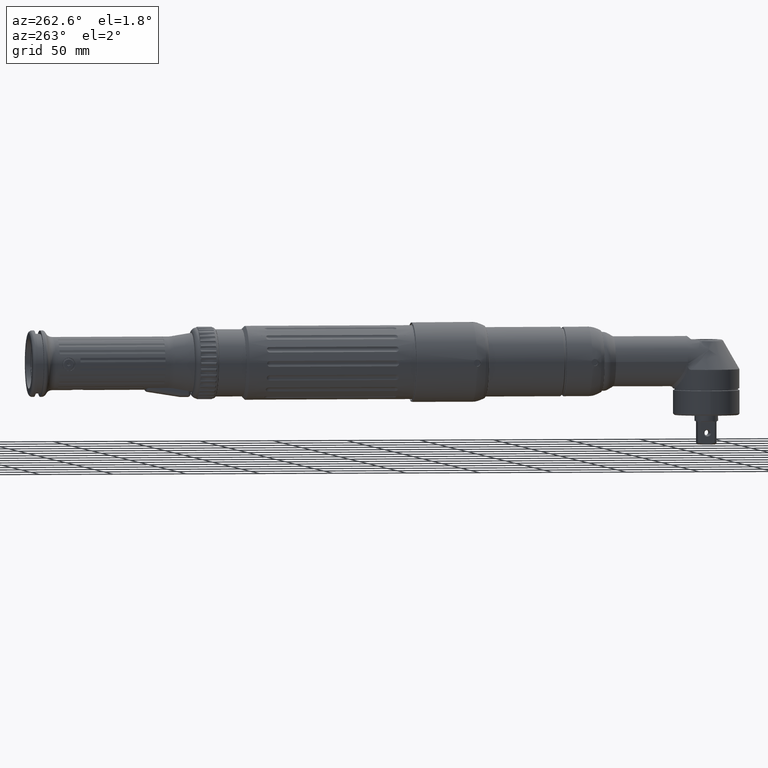
[diagram: clean part render]
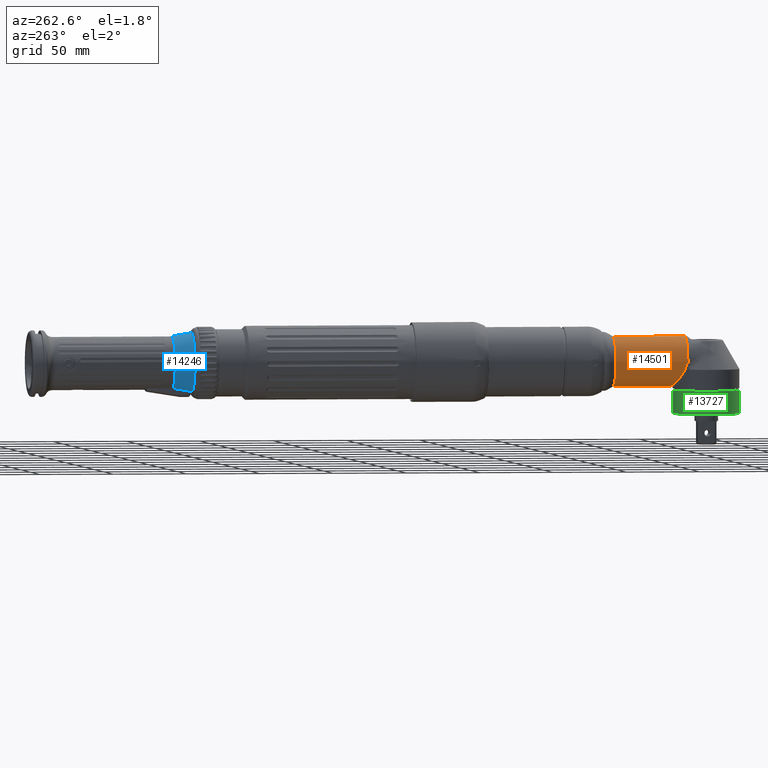
[diagram: same view with three faces highlighted in distinct colors, each labeled with its STEP entity id]
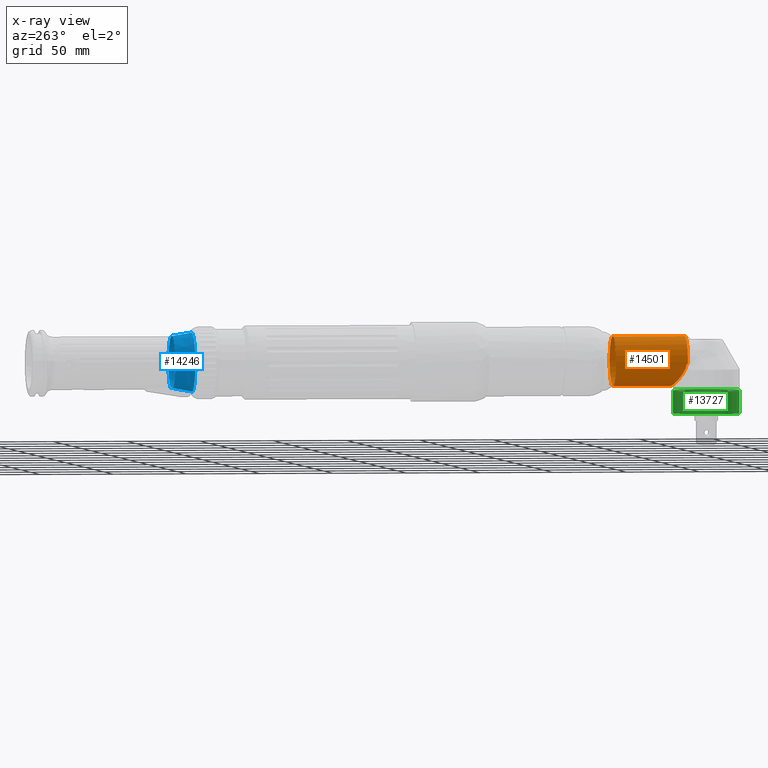
[diagram: x-ray of the same camera — body ghosted, the three highlighted faces saturated]
A machine part, auxiliary view with three faces highlighted in distinct colors.
The next image is the same camera in x-ray (body ghosted, the three faces saturated) — at least one of them is partly hidden behind the body in this view.
Their STEP definitions:

[orange] entity #14501 — the highlighted cylindrical surface (bore or boss wall) has radius 17 mm, axis along (-0, 1, 0).
#183=LINE('',#21595,#943);
#184=LINE('',#21803,#944);
#943=VECTOR('',#16611,10.);
#944=VECTOR('',#16624,10.);
#1800=B_SPLINE_CURVE_WITH_KNOTS('',3,(#21372,#21373,#21374,#21375,#21376,
#21377,#21378,#21379,#21380,#21381,#21382,#21383,#21384,#21385),
 .UNSPECIFIED.,.F.,.F.,(4,1,1,1,1,1,1,1,1,1,1,4),(9.63867667393683,10.0597628028646,
10.4808489317923,11.3230211896477,12.1651934475032,12.5862795764309,13.0073657053586,
13.8495379632141,14.3758956243737,14.6917102210695,15.1127963499972,15.5338824789249),
 .UNSPECIFIED.);
#2154=CYLINDRICAL_SURFACE('',#16334,17.);
#2432=FACE_BOUND('',#4373,.T.);
#3253=FACE_OUTER_BOUND('',#4372,.T.);
#4372=EDGE_LOOP('',(#11988));
#4373=EDGE_LOOP('',(#11989,#11990,#11991,#11992,#11993,#11994));
#4519=CIRCLE('',#14674,59.4019748154371);
#4524=CIRCLE('',#14679,59.4019748154799);
#4529=CIRCLE('',#14686,17.);
#5344=CIRCLE('',#16329,17.);
#5426=VERTEX_POINT('',#21360);
#5427=VERTEX_POINT('',#21371);
#5434=VERTEX_POINT('',#21542);
#5436=VERTEX_POINT('',#21594);
#5442=VERTEX_POINT('',#21733);
#5445=VERTEX_POINT('',#21801);
#5449=VERTEX_POINT('',#21843);
#6714=EDGE_CURVE('',#5426,#5427,#1800,.T.);
#6726=EDGE_CURVE('',#5434,#5436,#183,.T.);
#6727=EDGE_CURVE('',#5436,#5426,#4519,.T.);
#6738=EDGE_CURVE('',#5427,#5445,#4524,.T.);
#6739=EDGE_CURVE('',#5445,#5442,#184,.T.);
#6745=EDGE_CURVE('',#5449,#5449,#4529,.T.);
#8437=EDGE_CURVE('',#5434,#5442,#5344,.T.);
#11988=ORIENTED_EDGE('',*,*,#6745,.F.);
#11989=ORIENTED_EDGE('',*,*,#8437,.T.);
#11990=ORIENTED_EDGE('',*,*,#6739,.F.);
#11991=ORIENTED_EDGE('',*,*,#6738,.F.);
#11992=ORIENTED_EDGE('',*,*,#6714,.F.);
#11993=ORIENTED_EDGE('',*,*,#6727,.F.);
#11994=ORIENTED_EDGE('',*,*,#6726,.F.);
#14501=ADVANCED_FACE('',(#3253,#2432),#2154,.T.);
#14674=AXIS2_PLACEMENT_3D('',#21596,#16612,#16613);
#14679=AXIS2_PLACEMENT_3D('',#21802,#16622,#16623);
#14686=AXIS2_PLACEMENT_3D('',#21844,#16637,#16638);
#16329=AXIS2_PLACEMENT_3D('',#26887,#20627,#20628);
#16334=AXIS2_PLACEMENT_3D('',#26893,#20637,#20638);
#16611=DIRECTION('',(0.0392105891407421,0.847123771859647,-0.529947020795022));
#16612=DIRECTION('center_axis',(-0.0631345975144217,-0.527209511130166,
-0.84738666143065));
#16613=DIRECTION('ref_axis',(-0.996455303189669,0.0805992633780463,0.0240953831283222));
#16622=DIRECTION('center_axis',(0.0631345975143572,-0.52720951113017,-0.847386661430652));
#16623=DIRECTION('ref_axis',(0.997213588952679,0.067133157593847,0.0325299425083434));
#16624=DIRECTION('',(0.0392105891407263,-0.84712377185965,0.52994702079502));
#16637=DIRECTION('center_axis',(-1.22464679914735E-16,1.,0.));
#16638=DIRECTION('ref_axis',(1.,1.22464679914735E-16,0.));
#20627=DIRECTION('center_axis',(-1.22464679914735E-16,1.,0.));
#20628=DIRECTION('ref_axis',(1.,1.22464679914735E-16,0.));
#20637=DIRECTION('center_axis',(-1.22464679914735E-16,1.,0.));
#20638=DIRECTION('ref_axis',(-1.,0.,0.));
#21360=CARTESIAN_POINT('',(-16.9073379646187,15.5940593099192,-1.77254702339997));
#21371=CARTESIAN_POINT('',(16.9073379646187,15.5940593099192,-1.77254702340006));
#21372=CARTESIAN_POINT('Ctrl Pts',(-16.9073379646187,15.5940593099192,-1.77254702339996));
#21373=CARTESIAN_POINT('Ctrl Pts',(-16.7773914874297,15.7700500922398,-3.01203403172273));
#21374=CARTESIAN_POINT('Ctrl Pts',(-16.2504422415511,16.4814661866321,-5.41337131258643));
#21375=CARTESIAN_POINT('Ctrl Pts',(-14.3158603813949,18.6864824035621,-9.63817000965557));
#21376=CARTESIAN_POINT('Ctrl Pts',(-10.5520828816199,21.8719083568638,-13.9275893092122));
#21377=CARTESIAN_POINT('Ctrl Pts',(-5.03398275108421,24.1319787556201,-16.5768318626246));
#21378=CARTESIAN_POINT('Ctrl Pts',(0.000725504871669354,24.6227928377546,
-17.1415522783232));
#21379=CARTESIAN_POINT('Ctrl Pts',(5.02756424819938,24.1324564270527,-16.575928317564));
#21380=CARTESIAN_POINT('Ctrl Pts',(9.73286813772667,22.2096551294123,-14.326996425387));
#21381=CARTESIAN_POINT('Ctrl Pts',(12.9931230356695,19.8039884785273,-11.1358612442311));
#21382=CARTESIAN_POINT('Ctrl Pts',(14.9275571678397,17.994763611778,-8.32170498469535));
#21383=CARTESIAN_POINT('Ctrl Pts',(16.2456822314433,16.483093475385,-5.41076950539994));
#21384=CARTESIAN_POINT('Ctrl Pts',(16.7773918687409,15.7700495758176,-3.01203039460783));
#21385=CARTESIAN_POINT('Ctrl Pts',(16.9073379646187,15.5940593099192,-1.77254702340006));
#21542=CARTESIAN_POINT('',(-16.9549155136832,14.7394029729817,-1.23727116060432));
#21594=CARTESIAN_POINT('',(-16.9523816364161,14.7941460332559,-1.27151753951792));
#21595=CARTESIAN_POINT('',(-16.954915513655,14.7394029729985,-1.23727116058688));
#21596=CARTESIAN_POINT('Origin',(42.2840748601628,10.8063038965934,-3.2038603651573));
#21733=CARTESIAN_POINT('',(16.9549155136832,14.7394029729817,-1.23727116060432));
#21801=CARTESIAN_POINT('',(16.9523816364161,14.7941460332559,-1.27151753951793));
#21802=CARTESIAN_POINT('Origin',(-42.2840748602052,10.8063038965826,-3.20386036514755));
#21803=CARTESIAN_POINT('',(16.9523816364161,14.7941460332559,-1.27151753951793));
#21843=CARTESIAN_POINT('',(-17.,63.8038475772934,0.));
#21844=CARTESIAN_POINT('Origin',(-7.8137177708818E-15,63.8038475772934,
0.));
#26887=CARTESIAN_POINT('Origin',(-1.80505626722074E-15,14.7394029729837,
0.));
#26893=CARTESIAN_POINT('Origin',(-4.80938701905127E-15,39.2716252751385,
0.));

[blue] entity #14246 — the highlighted conical surface has half-angle 9.462 deg.
#1743=(
BOUNDED_CURVE()
B_SPLINE_CURVE(2,(#25091,#25092,#25093),.UNSPECIFIED.,.F.,.F.)
B_SPLINE_CURVE_WITH_KNOTS((3,3),(0.177331248463677,1.2130395809109),
 .UNSPECIFIED.)
CURVE()
GEOMETRIC_REPRESENTATION_ITEM()
RATIONAL_B_SPLINE_CURVE((1.00050185933742,1.00177441074317,1.00079239349961))
REPRESENTATION_ITEM('')
);
#1744=(
BOUNDED_CURVE()
B_SPLINE_CURVE(2,(#25097,#25098,#25099),.UNSPECIFIED.,.F.,.F.)
B_SPLINE_CURVE_WITH_KNOTS((3,3),(0.310797422904857,1.34650575535226),
 .UNSPECIFIED.)
CURVE()
GEOMETRIC_REPRESENTATION_ITEM()
RATIONAL_B_SPLINE_CURVE((1.00079239349968,1.00177441074332,1.00050185933746))
REPRESENTATION_ITEM('')
);
#1766=CONICAL_SURFACE('',#15744,19.25,9.46232220802565);
#2998=FACE_OUTER_BOUND('',#4024,.T.);
#4024=EDGE_LOOP('',(#10911,#10912,#10913,#10914,#10915,#10916));
#4973=CIRCLE('',#15599,20.5);
#5022=CIRCLE('',#15745,18.2721215233571);
#5023=CIRCLE('',#15746,5261.01204569476);
#5024=CIRCLE('',#15747,5261.01204621903);
#6083=VERTEX_POINT('',#24504);
#6084=VERTEX_POINT('',#24506);
#6226=VERTEX_POINT('',#25087);
#6227=VERTEX_POINT('',#25088);
#6228=VERTEX_POINT('',#25090);
#6229=VERTEX_POINT('',#25095);
#7686=EDGE_CURVE('',#6084,#6083,#4973,.T.);
#7905=EDGE_CURVE('',#6226,#6227,#5022,.T.);
#7906=EDGE_CURVE('',#6226,#6228,#1743,.T.);
#7907=EDGE_CURVE('',#6228,#6084,#5023,.T.);
#7908=EDGE_CURVE('',#6083,#6229,#5024,.T.);
#7909=EDGE_CURVE('',#6229,#6227,#1744,.T.);
#10911=ORIENTED_EDGE('',*,*,#7905,.F.);
#10912=ORIENTED_EDGE('',*,*,#7906,.T.);
#10913=ORIENTED_EDGE('',*,*,#7907,.T.);
#10914=ORIENTED_EDGE('',*,*,#7686,.T.);
#10915=ORIENTED_EDGE('',*,*,#7908,.T.);
#10916=ORIENTED_EDGE('',*,*,#7909,.T.);
#14246=ADVANCED_FACE('',(#2998),#1766,.T.);
#15599=AXIS2_PLACEMENT_3D('',#24507,#18854,#18855);
#15744=AXIS2_PLACEMENT_3D('',#25086,#19306,#19307);
#15745=AXIS2_PLACEMENT_3D('',#25089,#19308,#19309);
#15746=AXIS2_PLACEMENT_3D('',#25094,#19310,#19311);
#15747=AXIS2_PLACEMENT_3D('',#25096,#19312,#19313);
#18854=DIRECTION('center_axis',(-1.19366522497275E-16,1.,5.941108692445E-30));
#18855=DIRECTION('ref_axis',(-1.,-1.19366522497275E-16,-1.17167742971727E-14));
#19306=DIRECTION('center_axis',(1.19366522497275E-16,-1.,-5.941108692445E-30));
#19307=DIRECTION('ref_axis',(-1.17167742971727E-14,-7.29696337329436E-30,
1.));
#19308=DIRECTION('center_axis',(-1.19366522497275E-16,1.,5.941108692445E-30));
#19309=DIRECTION('ref_axis',(-1.18086228071088E-14,-7.30792701052198E-30,
1.));
#19310=DIRECTION('center_axis',(-1.,3.94216439799824E-13,-2.23262859391312E-12));
#19311=DIRECTION('ref_axis',(2.2671643442259E-12,0.174596291793324,-0.984640104247242));
#19312=DIRECTION('center_axis',(1.,3.63151629321848E-13,-2.03464889927055E-12));
#19313=DIRECTION('ref_axis',(-2.06680278387828E-12,0.17521319748384,-0.984530515234286));
#24504=CARTESIAN_POINT('',(7.00000000000004,351.249999999979,-19.2678488679976));
#24506=CARTESIAN_POINT('',(-6.99999999999996,351.249999999979,-19.2678488679977));
#24507=CARTESIAN_POINT('Origin',(-1.8687194448536E-13,351.249999999979,
4.2954486480089E-14));
#25086=CARTESIAN_POINT('Origin',(-1.87767193404089E-13,358.749999999979,
4.2954486480089E-14));
#25087=CARTESIAN_POINT('',(-6.99999999999999,364.617270859836,-16.8781048984871));
#25088=CARTESIAN_POINT('',(7.00000000000001,364.617270859836,-16.8781048984869));
#25089=CARTESIAN_POINT('Origin',(-1.92383505772192E-13,364.617270859836,
4.2954486480089E-14));
#25090=CARTESIAN_POINT('',(-7.,354.495548266089,-18.6912997512543));
#25091=CARTESIAN_POINT('Ctrl Pts',(-6.99999999999999,364.617270859836,-16.878104898487));
#25092=CARTESIAN_POINT('Ctrl Pts',(-6.99999999999998,359.814393292102,-17.744698661109));
#25093=CARTESIAN_POINT('Ctrl Pts',(-6.99999999999997,354.495548266089,-18.6912997512544));
#25094=CARTESIAN_POINT('Origin',(-7.00000001192754,-567.303194258336,5160.93560025089));
#25095=CARTESIAN_POINT('',(7.,354.495548266089,-18.6912997512542));
#25096=CARTESIAN_POINT('Origin',(7.00000001087351,-567.303194352949,5160.93560076655));
#25097=CARTESIAN_POINT('Ctrl Pts',(7.00000000000003,354.495548266088,-18.6912997512543));
#25098=CARTESIAN_POINT('Ctrl Pts',(7.00000000000002,359.814393292105,-17.7446986611084));
#25099=CARTESIAN_POINT('Ctrl Pts',(7.00000000000001,364.617270859836,-16.8781048984869));

[green] entity #13727 — the highlighted cylindrical surface (bore or boss wall) has radius 22.5 mm, axis along (-0, 0, 1).
#1917=CYLINDRICAL_SURFACE('',#14641,22.5);
#2205=FACE_BOUND('',#3372,.T.);
#2479=FACE_OUTER_BOUND('',#3371,.T.);
#3371=EDGE_LOOP('',(#8627));
#3372=EDGE_LOOP('',(#8628));
#4499=CIRCLE('',#14639,22.5);
#4501=CIRCLE('',#14642,22.5);
#5407=VERTEX_POINT('',#21196);
#5409=VERTEX_POINT('',#21201);
#6695=EDGE_CURVE('',#5407,#5407,#4499,.T.);
#6697=EDGE_CURVE('',#5409,#5409,#4501,.T.);
#8627=ORIENTED_EDGE('',*,*,#6697,.F.);
#8628=ORIENTED_EDGE('',*,*,#6695,.F.);
#13727=ADVANCED_FACE('',(#2479,#2205),#1917,.T.);
#14639=AXIS2_PLACEMENT_3D('',#21197,#16541,#16542);
#14641=AXIS2_PLACEMENT_3D('',#21200,#16545,#16546);
#14642=AXIS2_PLACEMENT_3D('',#21202,#16547,#16548);
#16541=DIRECTION('center_axis',(-5.00640500456419E-17,2.76389813842193E-33,
1.));
#16542=DIRECTION('ref_axis',(1.,0.,5.00640500456419E-17));
#16545=DIRECTION('center_axis',(-5.00640500456419E-17,2.76389813842193E-33,
1.));
#16546=DIRECTION('ref_axis',(-1.,0.,-5.00640500456419E-17));
#16547=DIRECTION('center_axis',(5.00640500456419E-17,-2.76389813842193E-33,
-1.));
#16548=DIRECTION('ref_axis',(1.,0.,5.00640500456419E-17));
#21196=CARTESIAN_POINT('',(-22.5,1.5008113095921E-14,-19.8));
#21197=CARTESIAN_POINT('Origin',(3.63389118112562E-15,1.77635683940025E-14,
-19.8));
#21200=CARTESIAN_POINT('Origin',(4.04441639149989E-15,1.77635683940025E-14,
-28.));
#21201=CARTESIAN_POINT('',(-22.5,2.0519023692084E-14,-35.5));
#21202=CARTESIAN_POINT('Origin',(4.4198967668422E-15,1.77635683940025E-14,
-35.5));